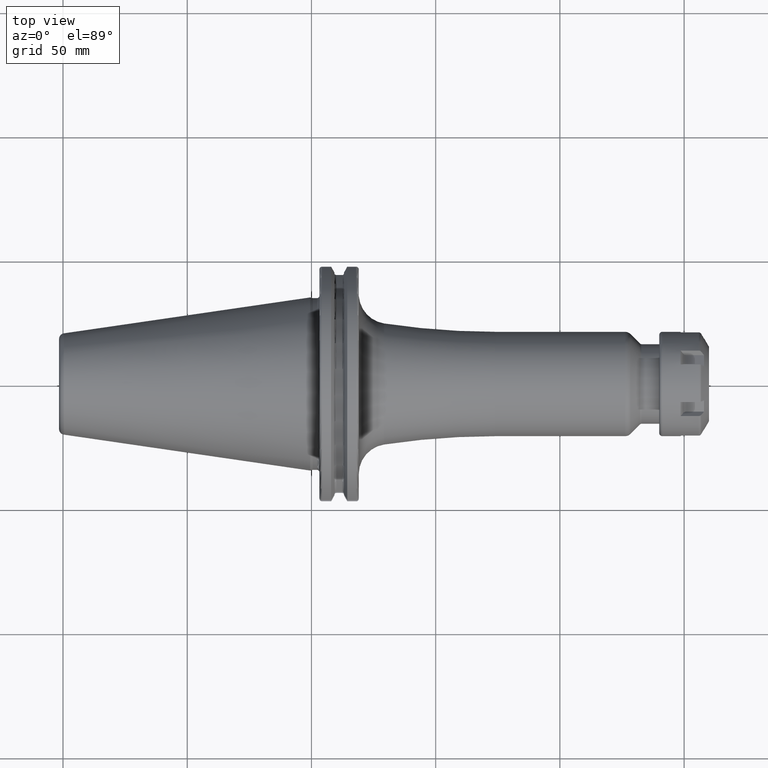
[diagram: clean part render]
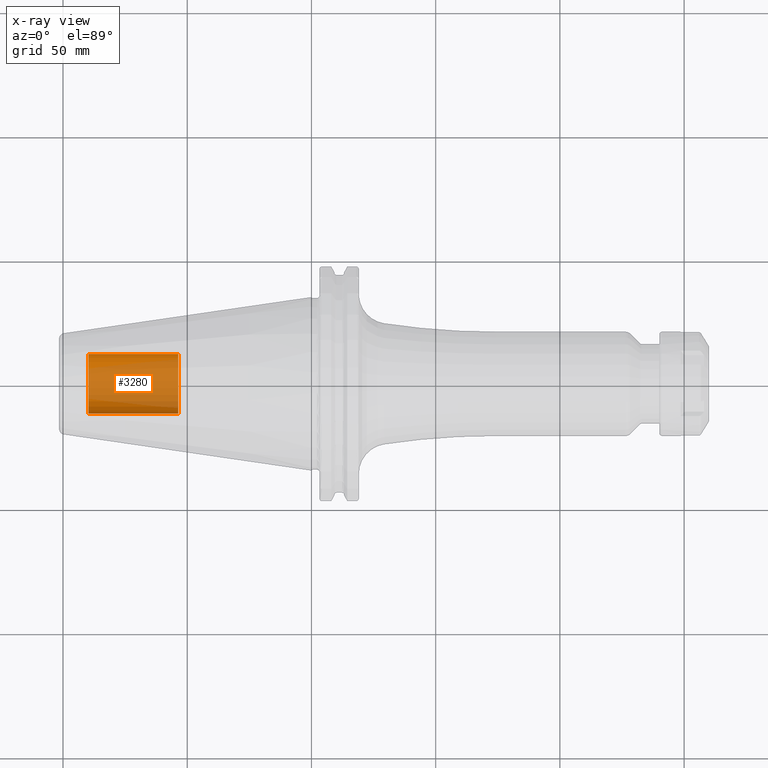
[diagram: x-ray — body ghosted, one internal face saturated and labeled with its STEP entity id]
A machine part, top view, then the same camera in x-ray: the body is ghosted and one INTERNAL B-rep face — a face not visible from any outside direction — is saturated and labeled: STEP entity #3280.
In plain terms, the highlighted cylindrical surface (edge-blend (fillet) strip) has radius 12.0032 mm, axis along (1, 0, 0).
Its self-contained STEP definition (entity closure, byte-faithful):
#3215=CARTESIAN_POINT('',(-8.985E1,0.E0,0.E0));
#3216=DIRECTION('',(-1.E0,0.E0,0.E0));
#3217=DIRECTION('',(0.E0,1.E0,0.E0));
#3218=AXIS2_PLACEMENT_3D('',#3215,#3216,#3217);
#3220=DIRECTION('',(1.E0,0.E0,0.E0));
#3221=VECTOR('',#3220,3.625E1);
#3222=CARTESIAN_POINT('',(-8.985E1,-1.200325E1,0.E0));
#3223=LINE('',#3222,#3221);
#3229=DIRECTION('',(1.E0,0.E0,0.E0));
#3230=VECTOR('',#3229,3.625E1);
#3231=CARTESIAN_POINT('',(-8.985E1,1.200325E1,0.E0));
#3232=LINE('',#3231,#3230);
#3238=CARTESIAN_POINT('',(-5.36E1,0.E0,0.E0));
#3239=DIRECTION('',(1.E0,0.E0,0.E0));
#3240=DIRECTION('',(0.E0,-1.E0,0.E0));
#3241=AXIS2_PLACEMENT_3D('',#3238,#3239,#3240);
#3253=CARTESIAN_POINT('',(-8.985E1,1.200325E1,0.E0));
#3254=CARTESIAN_POINT('',(-8.985E1,-1.200325E1,0.E0));
#3255=VERTEX_POINT('',#3253);
#3256=VERTEX_POINT('',#3254);
#3257=CARTESIAN_POINT('',(-5.36E1,1.200325E1,0.E0));
#3258=CARTESIAN_POINT('',(-5.36E1,-1.200325E1,0.E0));
#3259=VERTEX_POINT('',#3257);
#3260=VERTEX_POINT('',#3258);
#3265=CARTESIAN_POINT('',(-8.985E1,0.E0,0.E0));
#3266=DIRECTION('',(1.E0,0.E0,0.E0));
#3267=DIRECTION('',(0.E0,1.E0,0.E0));
#3268=AXIS2_PLACEMENT_3D('',#3265,#3266,#3267);
#3269=CYLINDRICAL_SURFACE('',#3268,1.200325E1);
#3271=ORIENTED_EDGE('',*,*,#3270,.T.);
#3273=ORIENTED_EDGE('',*,*,#3272,.T.);
#3275=ORIENTED_EDGE('',*,*,#3274,.T.);
#3277=ORIENTED_EDGE('',*,*,#3276,.F.);
#3278=EDGE_LOOP('',(#3271,#3273,#3275,#3277));
#3279=FACE_OUTER_BOUND('',#3278,.F.);
#3280=ADVANCED_FACE('',(#3279),#3269,.T.);
#3219=CIRCLE('',#3218,1.200325E1);
#3242=CIRCLE('',#3241,1.200325E1);
#3270=EDGE_CURVE('',#3255,#3256,#3219,.T.);
#3272=EDGE_CURVE('',#3256,#3260,#3223,.T.);
#3274=EDGE_CURVE('',#3260,#3259,#3242,.T.);
#3276=EDGE_CURVE('',#3255,#3259,#3232,.T.);